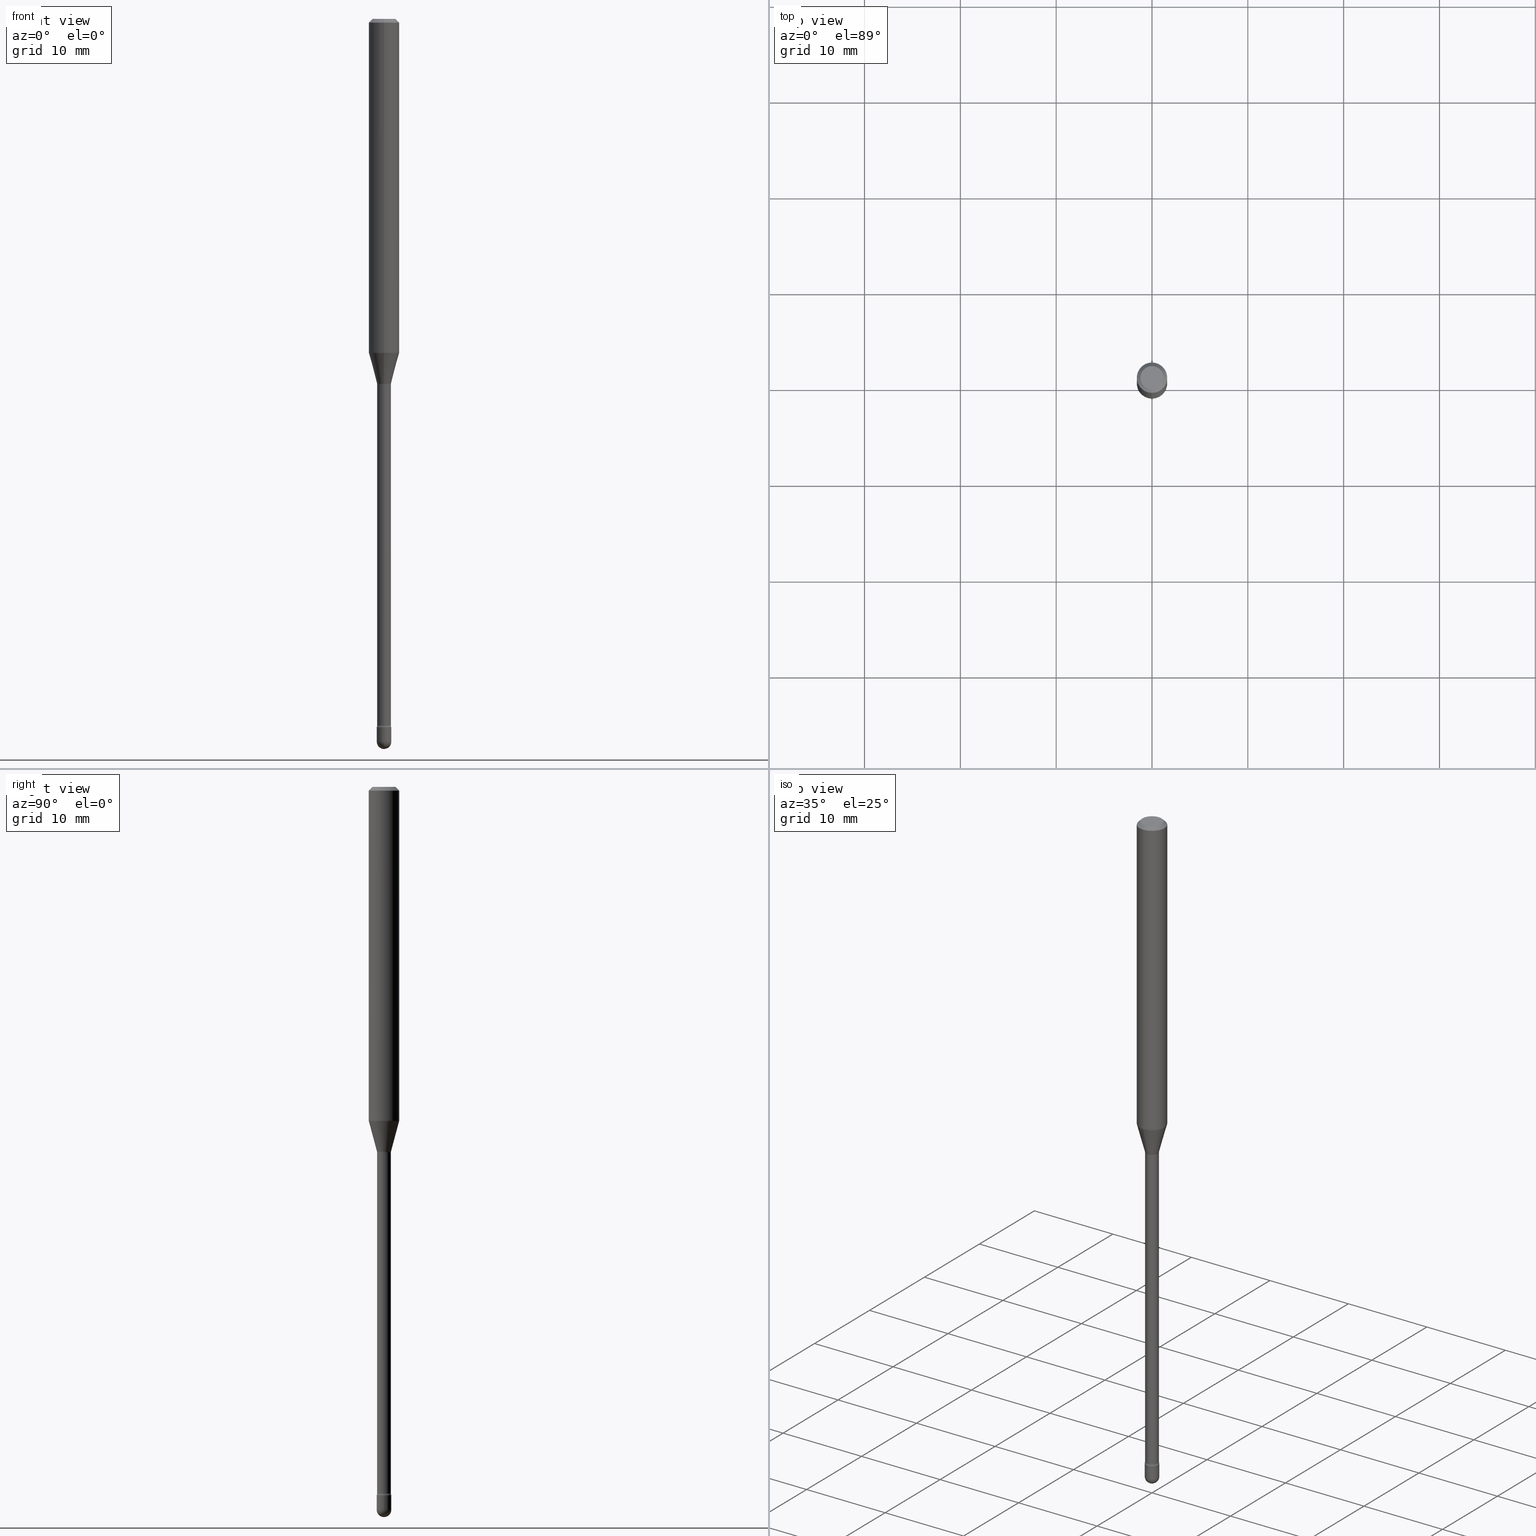
[diagram: canonical four-view strip — front | top / right | iso, engineering-drawing reading convention]
A machine part, canonical four-view strip (front | top / right | iso — engineering-drawing reading convention). The complete STEP part file that produces these views, byte-faithful:
ISO-10303-21;
HEADER;
FILE_DESCRIPTION (( 'STEP AP203' ),
    '1' );
FILE_NAME ('03979.STEP',
    '2024-04-09T21:37:00',
    ( '' ),
    ( '' ),
    'SwSTEP 2.0',
    'SolidWorks 2023',
    '' );
FILE_SCHEMA (( 'CONFIG_CONTROL_DESIGN' ));
ENDSEC;

DATA;
#1 = CARTESIAN_POINT ( 'NONE',  ( 7.263042354369856275E-29, -1.036969957636414298E-14, -2.970000000000000195 ) ) ;
#2 = CARTESIAN_POINT ( 'NONE',  ( 2.094888803306605716E-16, 0.02999999999998962177, -2.970000000000000195 ) ) ;
#3 = DATE_AND_TIME ( #134, #385 ) ;
#4 = CARTESIAN_POINT ( 'NONE',  ( 4.440892098500625669E-16, 0.06250000000000000000, 2.598563451626412411E-16 ) ) ;
#5 = DIRECTION ( 'NONE',  ( -6.982962677686266711E-15, -1.000000000000000000, 3.491472859657677154E-15 ) ) ;
#6 = ORIENTED_EDGE ( 'NONE', *, *, #511, .F. ) ;
#7 = ADVANCED_FACE ( 'NONE', ( #141 ), #537, .T. ) ;
#8 = AXIS2_PLACEMENT_3D ( 'NONE', #171, #127, #314 ) ;
#9 = CC_DESIGN_APPROVAL ( #117, ( #401 ) ) ;
#10 = DIRECTION ( 'NONE',  ( 1.000000000000000000, -6.982962677686266711E-15, 4.876176775795935793E-29 ) ) ;
#11 = PRODUCT ( '03979', '03979', '', ( #318 ) ) ;
#12 = LINE ( 'NONE', #102, #363 ) ;
#13 = CARTESIAN_POINT ( 'NONE',  ( -3.016639876759769479E-16, -0.04320000000001030654, -2.902875394747778337 ) ) ;
#14 = AXIS2_PLACEMENT_3D ( 'NONE', #327, #98, #286 ) ;
#15 = CONICAL_SURFACE ( 'NONE', #538, 0.06250000000000000000, 0.7853981633974483900 ) ;
#16 = VERTEX_POINT ( 'NONE', #146 ) ;
#17 = EDGE_CURVE ( 'NONE', #344, #94, #95, .T. ) ;
#18 = DIRECTION ( 'NONE',  ( -1.000000000000000000, 6.982962677686265922E-15, -4.883557194083112340E-29 ) ) ;
#19 = ORIENTED_EDGE ( 'NONE', *, *, #73, .T. ) ;
#20 = CC_DESIGN_DATE_AND_TIME_ASSIGNMENT ( #37, #446, ( #187 ) ) ;
#21 = CARTESIAN_POINT ( 'NONE',  ( 3.355168478339675367E-29, -4.790268143668202396E-15, -1.371990657300387939 ) ) ;
#22 = EDGE_LOOP ( 'NONE', ( #201, #456 ) ) ;
#23 = AXIS2_PLACEMENT_3D ( 'NONE', #501, #106, #161 ) ;
#24 = AXIS2_PLACEMENT_3D ( 'NONE', #168, #268, #142 ) ;
#25 = ORIENTED_EDGE ( 'NONE', *, *, #17, .F. ) ;
#26 = LINE ( 'NONE', #475, #496 ) ;
#27 = CARTESIAN_POINT ( 'NONE',  ( -2.131628207279573248E-16, -0.03000000000001035866, -2.970000000000000195 ) ) ;
#28 = CARTESIAN_POINT ( 'NONE',  ( 0.000000000000000000, 0.000000000000000000, 0.000000000000000000 ) ) ;
#29 = ADVANCED_FACE ( 'NONE', ( #396 ), #162, .F. ) ;
#30 = CC_DESIGN_PERSON_AND_ORGANIZATION_ASSIGNMENT ( #269, #398, ( #401 ) ) ;
#31 = COORDINATED_UNIVERSAL_TIME_OFFSET ( 5, 0, .BEHIND. ) ;
#32 = CARTESIAN_POINT ( 'NONE',  ( 4.364351673553919652E-16, 0.06249999999999995143, -0.01500000000000030129 ) ) ;
#33 = PERSON_AND_ORGANIZATION ( #287, #531 ) ;
#34 = AXIS2_PLACEMENT_3D ( 'NONE', #226, #274, #405 ) ;
#35 = COORDINATED_UNIVERSAL_TIME_OFFSET ( 5, 0, .BEHIND. ) ;
#36 = CC_DESIGN_PERSON_AND_ORGANIZATION_ASSIGNMENT ( #33, #129, ( #401 ) ) ;
#37 = DATE_AND_TIME ( #222, #330 ) ;
#38 = PERSON_AND_ORGANIZATION ( #287, #531 ) ;
#39 = DIRECTION ( 'NONE',  ( 1.000000000000000000, -7.105427357601001070E-15, 4.926315404702009189E-29 ) ) ;
#40 = DIRECTION ( 'NONE',  ( -6.982962677686265922E-15, -1.000000000000000000, 0.000000000000000000 ) ) ;
#41 = ORIENTED_EDGE ( 'NONE', *, *, #439, .F. ) ;
#42 = ORIENTED_EDGE ( 'NONE', *, *, #366, .T. ) ;
#43 = ORIENTED_EDGE ( 'NONE', *, *, #413, .F. ) ;
#44 = PRODUCT_DEFINITION_SHAPE ( 'NONE', 'NONE',  #187 ) ;
#45 = CARTESIAN_POINT ( 'NONE',  ( 0.000000000000000000, 0.000000000000000000, 0.000000000000000000 ) ) ;
#46 = ADVANCED_FACE ( 'NONE', ( #564 ), #231, .T. ) ;
#47 = CIRCLE ( 'NONE', #519, 0.02999999999999997807 ) ;
#48 = ORIENTED_EDGE ( 'NONE', *, *, #155, .F. ) ;
#49 = AXIS2_PLACEMENT_3D ( 'NONE', #462, #455, #237 ) ;
#50 = ORIENTED_EDGE ( 'NONE', *, *, #350, .F. ) ;
#51 = DIRECTION ( 'NONE',  ( 1.000000000000000000, -6.982962677686266711E-15, 0.000000000000000000 ) ) ;
#52 = ORIENTED_EDGE ( 'NONE', *, *, #257, .F. ) ;
#53 = UNCERTAINTY_MEASURE_WITH_UNIT (LENGTH_MEASURE( 1.000000000000000082E-05 ), #432, 'distance_accuracy_value', 'NONE');
#54 = SPHERICAL_SURFACE ( 'NONE', #173, 0.02999999999999997807 ) ;
#55 = DIRECTION ( 'NONE',  ( 6.982962677686265922E-15, 1.000000000000000000, 0.000000000000000000 ) ) ;
#56 = VERTEX_POINT ( 'NONE', #402 ) ;
#57 = DIRECTION ( 'NONE',  ( -2.445474727168702931E-29, 3.491472859657677154E-15, 1.000000000000000000 ) ) ;
#58 = AXIS2_PLACEMENT_3D ( 'NONE', #440, #530, #230 ) ;
#59 = ORIENTED_EDGE ( 'NONE', *, *, #431, .T. ) ;
#60 = FACE_OUTER_BOUND ( 'NONE', #335, .T. ) ;
#61 = ORIENTED_EDGE ( 'NONE', *, *, #294, .T. ) ;
#62 = APPROVAL_DATE_TIME ( #123, #329 ) ;
#63 = DIRECTION ( 'NONE',  ( 1.000000000000000000, -6.982962677686266711E-15, 0.000000000000000000 ) ) ;
#64 = ORIENTED_EDGE ( 'NONE', *, *, #166, .F. ) ;
#65 = MANIFOLD_SOLID_BREP ( 'Body-Move/Copy2[1]', #216 ) ;
#66 = ADVANCED_FACE ( 'NONE', ( #453 ), #74, .T. ) ;
#67 = DIRECTION ( 'NONE',  ( -6.982962677686265133E-15, -1.000000000000000000, 0.000000000000000000 ) ) ;
#68 = AXIS2_PLACEMENT_3D ( 'NONE', #322, #410, #148 ) ;
#69 = AXIS2_PLACEMENT_3D ( 'NONE', #524, #445, #40 ) ;
#70 = ORIENTED_EDGE ( 'NONE', *, *, #378, .F. ) ;
#71 = DIRECTION ( 'NONE',  ( -6.982962677686265922E-15, -1.000000000000000000, 4.370956789862821150E-15 ) ) ;
#72 = DIRECTION ( 'NONE',  ( -2.445474727168702931E-29, 3.491472859657677154E-15, 1.000000000000000000 ) ) ;
#73 = EDGE_CURVE ( 'NONE', #509, #332, #518, .T. ) ;
#74 = CONICAL_SURFACE ( 'NONE', #235, 0.02871111260566397427, 0.2617993877991500740 ) ;
#75 = AXIS2_PLACEMENT_3D ( 'NONE', #215, #470, #118 ) ;
#76 =( GEOMETRIC_REPRESENTATION_CONTEXT ( 3 ) GLOBAL_UNCERTAINTY_ASSIGNED_CONTEXT ( ( #53 ) ) GLOBAL_UNIT_ASSIGNED_CONTEXT ( ( #432, #207, #210 ) ) REPRESENTATION_CONTEXT ( 'NONE', 'WORKASPACE' ) );
#77 = CARTESIAN_POINT ( 'NONE',  ( 3.840629472727447874E-16, 0.04749999999999999362, -2.485923956665947867E-16 ) ) ;
#78 = EDGE_LOOP ( 'NONE', ( #454, #196, #471, #369 ) ) ;
#79 = FACE_OUTER_BOUND ( 'NONE', #151, .T. ) ;
#80 = APPROVAL_ROLE ( '' ) ;
#81 = DIRECTION ( 'NONE',  ( -2.445474727168702931E-29, 3.491472859657677154E-15, 1.000000000000000000 ) ) ;
#82 = APPROVAL ( #126, 'UNSPECIFIED' ) ;
#83 = DIRECTION ( 'NONE',  ( -2.445474727168702931E-29, 3.491472859657677154E-15, 1.000000000000000000 ) ) ;
#84 = CIRCLE ( 'NONE', #372, 0.02999999999999999889 ) ;
#85 = CIRCLE ( 'NONE', #340, 0.02999999999999999889 ) ;
#86 = PERSON_AND_ORGANIZATION_ROLE ( 'design_owner' ) ;
#87 = CARTESIAN_POINT ( 'NONE',  ( 3.673032490419300829E-29, -5.244116941842796689E-15, -1.501974787463811190 ) ) ;
#88 = CARTESIAN_POINT ( 'NONE',  ( 0.03000000000000000583, -1.047444401652943635E-14, -2.970000000000000195 ) ) ;
#89 = ORIENTED_EDGE ( 'NONE', *, *, #17, .T. ) ;
#90 = COORDINATED_UNIVERSAL_TIME_OFFSET ( 5, 0, .BEHIND. ) ;
#91 = DIRECTION ( 'NONE',  ( -2.445474727168702931E-29, 3.491472859657677154E-15, 1.000000000000000000 ) ) ;
#92 = ORIENTED_EDGE ( 'NONE', *, *, #240, .F. ) ;
#93 = DIRECTION ( 'NONE',  ( 6.982962677686265922E-15, 1.000000000000000000, 0.000000000000000000 ) ) ;
#94 = VERTEX_POINT ( 'NONE', #267 ) ;
#95 = CIRCLE ( 'NONE', #416, 0.01499999999999995087 ) ;
#96 = CARTESIAN_POINT ( 'NONE',  ( 7.263042354369856275E-29, -1.036969957636414298E-14, -2.970000000000000195 ) ) ;
#97 = AXIS2_PLACEMENT_3D ( 'NONE', #528, #562, #321 ) ;
#98 = DIRECTION ( 'NONE',  ( -2.445474727168702931E-29, 3.491472859657677154E-15, 1.000000000000000000 ) ) ;
#99 = CC_DESIGN_APPROVAL ( #82, ( #549 ) ) ;
#100 = ORIENTED_EDGE ( 'NONE', *, *, #334, .T. ) ;
#101 = ORIENTED_EDGE ( 'NONE', *, *, #427, .T. ) ;
#102 = CARTESIAN_POINT ( 'NONE',  ( 2.040047249754843961E-16, 0.02871111260565874582, -1.498092501787273267 ) ) ;
#103 = ORIENTED_EDGE ( 'NONE', *, *, #345, .F. ) ;
#104 = CARTESIAN_POINT ( 'NONE',  ( 7.263042354369856275E-29, -1.036969957636414298E-14, -2.970000000000000195 ) ) ;
#105 = AXIS2_PLACEMENT_3D ( 'NONE', #386, #154, #343 ) ;
#106 = DIRECTION ( 'NONE',  ( -2.445474727168702931E-29, 3.491472859657677154E-15, 1.000000000000000000 ) ) ;
#107 = LOCAL_TIME ( 17, 37, 0.000000000000000000, #512 ) ;
#108 = VERTEX_POINT ( 'NONE', #311 ) ;
#109 = DIRECTION ( 'NONE',  ( -2.445468806185136597E-29, 3.491481338843145583E-15, 1.000000000000000000 ) ) ;
#110 = DIRECTION ( 'NONE',  ( -6.982962677686265922E-15, -1.000000000000000000, 0.000000000000000000 ) ) ;
#111 = CARTESIAN_POINT ( 'NONE',  ( 7.098908413975562877E-29, -1.013531065572993230E-14, -2.902875394747778337 ) ) ;
#112 = EDGE_LOOP ( 'NONE', ( #387, #365, #59, #163 ) ) ;
#113 = ADVANCED_FACE ( 'NONE', ( #437 ), #441, .T. ) ;
#114 = CARTESIAN_POINT ( 'NONE',  ( 7.098908413975562877E-29, -1.013531065572993230E-14, -2.902875394747778337 ) ) ;
#115 = CARTESIAN_POINT ( 'NONE',  ( -1.969195475107158970E-16, -0.02820000000000523824, -1.501974787463811190 ) ) ;
#116 = ORIENTED_EDGE ( 'NONE', *, *, #209, .T. ) ;
#117 = APPROVAL ( #484, 'UNSPECIFIED' ) ;
#118 = DIRECTION ( 'NONE',  ( 6.982962677686265922E-15, 1.000000000000000000, -3.491472859657677154E-15 ) ) ;
#119 = CIRCLE ( 'NONE', #348, 0.03000000000000000583 ) ;
#120 = LOCAL_TIME ( 17, 37, 0.000000000000000000, #442 ) ;
#121 = EDGE_CURVE ( 'NONE', #232, #503, #47, .T. ) ;
#122 = DIRECTION ( 'NONE',  ( -6.982962677686265133E-15, -1.000000000000000000, 0.000000000000000000 ) ) ;
#123 = DATE_AND_TIME ( #214, #107 ) ;
#124 = DIRECTION ( 'NONE',  ( -2.445474727168702931E-29, 3.491472859657677154E-15, 1.000000000000000000 ) ) ;
#125 = CARTESIAN_POINT ( 'NONE',  ( 7.116331456060926733E-29, -1.016018602160384322E-14, -2.910000000000000586 ) ) ;
#126 = APPROVAL_STATUS ( 'not_yet_approved' ) ;
#127 = DIRECTION ( 'NONE',  ( -2.438088387897960049E-29, 3.491481338843145188E-15, 1.000000000000000000 ) ) ;
#128 = EDGE_CURVE ( 'NONE', #336, #156, #383, .T. ) ;
#129 = PERSON_AND_ORGANIZATION_ROLE ( 'design_supplier' ) ;
#130 = DIRECTION ( 'NONE',  ( -1.807323732225328562E-15, -0.2588190451025179639, 0.9659258262890690894 ) ) ;
#131 = APPLICATION_PROTOCOL_DEFINITION ( 'international standard', 'config_control_design', 1994, #276 ) ;
#132 = EDGE_LOOP ( 'NONE', ( #302, #539, #48, #70, #116 ) ) ;
#133 = VECTOR ( 'NONE', #516, 39.37007874015748143 ) ;
#134 = CALENDAR_DATE ( 2024, 9, 4 ) ;
#135 = AXIS2_PLACEMENT_3D ( 'NONE', #338, #109, #553 ) ;
#136 = ORIENTED_EDGE ( 'NONE', *, *, #228, .F. ) ;
#137 = CALENDAR_DATE ( 2024, 9, 4 ) ;
#138 = CC_DESIGN_PERSON_AND_ORGANIZATION_ASSIGNMENT ( #527, #271, ( #549 ) ) ;
#139 = ORIENTED_EDGE ( 'NONE', *, *, #128, .F. ) ;
#140 = SPHERICAL_SURFACE ( 'NONE', #547, 0.02999999999999997807 ) ;
#141 = FACE_OUTER_BOUND ( 'NONE', #543, .T. ) ;
#142 = DIRECTION ( 'NONE',  ( -6.982962677686265133E-15, -1.000000000000000000, 3.491472859657677154E-15 ) ) ;
#143 = ADVANCED_FACE ( 'NONE', ( #375 ), #279, .F. ) ;
#144 = DIRECTION ( 'NONE',  ( -2.445474727168702931E-29, 3.491472859657677154E-15, 1.000000000000000000 ) ) ;
#145 = AXIS2_PLACEMENT_3D ( 'NONE', #167, #424, #122 ) ;
#146 = CARTESIAN_POINT ( 'NONE',  ( -1.969195475106832086E-16, -0.02820000000001035220, -2.902875394747778337 ) ) ;
#147 = LOCAL_TIME ( 17, 37, 0.000000000000000000, #31 ) ;
#148 = DIRECTION ( 'NONE',  ( -6.982962677686265922E-15, -1.000000000000000000, 3.483106191921935554E-15 ) ) ;
#149 = DIRECTION ( 'NONE',  ( -6.982962677686266711E-15, -1.000000000000000000, 0.000000000000000000 ) ) ;
#150 = CARTESIAN_POINT ( 'NONE',  ( 7.116314225998749245E-29, -1.016021069603355467E-14, -2.910000000000000586 ) ) ;
#151 = EDGE_LOOP ( 'NONE', ( #468, #139, #42, #486 ) ) ;
#152 = DIRECTION ( 'NONE',  ( -2.445474727168702650E-29, 3.491472859657677154E-15, 1.000000000000000000 ) ) ;
#153 = CIRCLE ( 'NONE', #557, 0.02820000000000021795 ) ;
#154 = DIRECTION ( 'NONE',  ( -2.445468806185136597E-29, 3.491481338843145583E-15, 1.000000000000000000 ) ) ;
#155 = EDGE_CURVE ( 'NONE', #241, #188, #84, .T. ) ;
#156 = VERTEX_POINT ( 'NONE', #208 ) ;
#157 = DIRECTION ( 'NONE',  ( 7.105427357601001859E-15, 1.000000000000000000, 0.000000000000000000 ) ) ;
#158 = ORIENTED_EDGE ( 'NONE', *, *, #489, .F. ) ;
#159 = DIRECTION ( 'NONE',  ( -2.445468806185136597E-29, 3.491481338843145583E-15, 1.000000000000000000 ) ) ;
#160 = EDGE_CURVE ( 'NONE', #332, #451, #319, .T. ) ;
#161 = DIRECTION ( 'NONE',  ( -6.982962677686266711E-15, -1.000000000000000000, 3.491472859657677154E-15 ) ) ;
#162 = TOROIDAL_SURFACE ( 'NONE', #245, 0.04320000000000000229, 0.01500000000000003067 ) ;
#163 = ORIENTED_EDGE ( 'NONE', *, *, #366, .F. ) ;
#164 = CIRCLE ( 'NONE', #472, 0.01500000000000002720 ) ;
#165 = CONICAL_SURFACE ( 'NONE', #444, 0.02871111260566397427, 0.2617993877991500740 ) ;
#166 = EDGE_CURVE ( 'NONE', #344, #16, #153, .T. ) ;
#167 = CARTESIAN_POINT ( 'NONE',  ( 3.673041383587334427E-29, -5.244104206320004294E-15, -1.501974787463811190 ) ) ;
#168 = CARTESIAN_POINT ( 'NONE',  ( 7.098891226098056422E-29, -1.013533526974879710E-14, -2.902875394747778337 ) ) ;
#169 = CARTESIAN_POINT ( 'NONE',  ( -1.169113584055446105E-44, 1.669184350826100908E-30, 4.780733988912460139E-16 ) ) ;
#170 = PERSON_AND_ORGANIZATION_ROLE ( 'creator' ) ;
#171 = CARTESIAN_POINT ( 'NONE',  ( 7.116314225998749245E-29, -1.016021069603355467E-14, -2.910000000000000586 ) ) ;
#172 = ADVANCED_FACE ( 'NONE', ( #349 ), #200, .F. ) ;
#173 = AXIS2_PLACEMENT_3D ( 'NONE', #333, #18, #499 ) ;
#174 = APPROVAL_ROLE ( '' ) ;
#175 = CARTESIAN_POINT ( 'NONE',  ( -2.004886277601625848E-16, -0.02871111260566920273, -1.498092501787273267 ) ) ;
#176 = DESIGN_CONTEXT ( 'detailed design', #395, 'design' ) ;
#177 = DIRECTION ( 'NONE',  ( -2.445474727168702931E-29, 3.491472859657677154E-15, 1.000000000000000000 ) ) ;
#178 = ADVANCED_BREP_SHAPE_REPRESENTATION ( '03979', ( #65, #447, #58 ), #76 ) ;
#179 = ORIENTED_EDGE ( 'NONE', *, *, #192, .F. ) ;
#180 = PERSON_AND_ORGANIZATION ( #287, #531 ) ;
#181 = EDGE_CURVE ( 'NONE', #414, #188, #390, .T. ) ;
#182 = LINE ( 'NONE', #4, #185 ) ;
#183 = DIRECTION ( 'NONE',  ( 7.105427357601001859E-15, 1.000000000000000000, 0.000000000000000000 ) ) ;
#184 = ORIENTED_EDGE ( 'NONE', *, *, #378, .T. ) ;
#185 = VECTOR ( 'NONE', #266, 39.37007874015748143 ) ;
#186 = AXIS2_PLACEMENT_3D ( 'NONE', #290, #91, #514 ) ;
#187 = PRODUCT_DEFINITION ( 'UNKNOWN', '', #401, #176 ) ;
#188 = VERTEX_POINT ( 'NONE', #505 ) ;
#189 = ORIENTED_EDGE ( 'NONE', *, *, #563, .F. ) ;
#190 = CARTESIAN_POINT ( 'NONE',  ( -1.169113584055446105E-44, 1.669184350826100908E-30, 4.780733988912460139E-16 ) ) ;
#191 = ORIENTED_EDGE ( 'NONE', *, *, #345, .T. ) ;
#192 = EDGE_CURVE ( 'NONE', #332, #234, #393, .T. ) ;
#193 = VERTEX_POINT ( 'NONE', #388 ) ;
#194 = DIRECTION ( 'NONE',  ( -2.445468806185136877E-29, 3.491481338843145188E-15, 1.000000000000000000 ) ) ;
#195 = DIRECTION ( 'NONE',  ( -6.982962677686266711E-15, -1.000000000000000000, 3.491472859657677548E-15 ) ) ;
#196 = ORIENTED_EDGE ( 'NONE', *, *, #240, .T. ) ;
#197 = CARTESIAN_POINT ( 'NONE',  ( 0.03000000000000000583, -2.094888803305880457E-16, 1.462853032738781053E-30 ) ) ;
#198 = ORIENTED_EDGE ( 'NONE', *, *, #481, .F. ) ;
#199 = DIRECTION ( 'NONE',  ( -2.445474727168702931E-29, 3.491472859657677154E-15, 1.000000000000000000 ) ) ;
#200 = PLANE ( 'NONE',  #75 ) ;
#201 = ORIENTED_EDGE ( 'NONE', *, *, #128, .T. ) ;
#202 = EDGE_CURVE ( 'NONE', #232, #288, #458, .T. ) ;
#203 = AXIS2_PLACEMENT_3D ( 'NONE', #96, #459, #51 ) ;
#204 = CARTESIAN_POINT ( 'NONE',  ( 3.069544618483999786E-16, 0.04319999999999475648, -1.501974787463811412 ) ) ;
#205 = CC_DESIGN_APPROVAL ( #329, ( #187 ) ) ;
#206 = EDGE_LOOP ( 'NONE', ( #252, #61, #136, #52 ) ) ;
#207 =( NAMED_UNIT ( * ) PLANE_ANGLE_UNIT ( ) SI_UNIT ( $, .RADIAN. ) );
#208 = CARTESIAN_POINT ( 'NONE',  ( -3.773273898774340269E-16, -0.04749999999999999362, 8.309752600088451631E-17 ) ) ;
#209 = EDGE_CURVE ( 'NONE', #490, #503, #443, .T. ) ;
#210 =( NAMED_UNIT ( * ) SI_UNIT ( $, .STERADIAN. ) SOLID_ANGLE_UNIT ( ) );
#211 = CARTESIAN_POINT ( 'NONE',  ( 2.003730514843489875E-16, 0.02820000000000010693, 3.796138642488992175E-16 ) ) ;
#212 = CARTESIAN_POINT ( 'NONE',  ( 3.069544618484353787E-16, 0.04319999999999003804, -2.902875394747778337 ) ) ;
#213 = CC_DESIGN_PERSON_AND_ORGANIZATION_ASSIGNMENT ( #404, #170, ( #187 ) ) ;
#214 = CALENDAR_DATE ( 2024, 9, 4 ) ;
#215 = CARTESIAN_POINT ( 'NONE',  ( 3.316907271900976096E-16, 0.04749999999999999362, 3.181802119545582484E-17 ) ) ;
#216 = CLOSED_SHELL ( 'NONE', ( #233, #407, #113, #450, #391 ) ) ;
#217 = AXIS2_PLACEMENT_3D ( 'NONE', #45, #367, #10 ) ;
#218 = TOROIDAL_SURFACE ( 'NONE', #186, 0.04320000000000016882, 0.01499999999999995087 ) ;
#219 = DATE_TIME_ROLE ( 'classification_date' ) ;
#220 = EDGE_CURVE ( 'NONE', #156, #234, #341, .T. ) ;
#221 = DIRECTION ( 'NONE',  ( 4.937700262164548042E-15, 0.7071067811865451302, -0.7071067811865499042 ) ) ;
#222 = CALENDAR_DATE ( 2024, 9, 4 ) ;
#223 = DIRECTION ( 'NONE',  ( -6.982962677686266711E-15, -1.000000000000000000, 3.491472859657679126E-15 ) ) ;
#224 = AXIS2_PLACEMENT_3D ( 'NONE', #546, #177, #223 ) ;
#225 = DATE_AND_TIME ( #452, #120 ) ;
#226 = CARTESIAN_POINT ( 'NONE',  ( 3.355168478339675367E-29, -4.790268143668202396E-15, -1.371990657300387939 ) ) ;
#227 = DIRECTION ( 'NONE',  ( 1.000000000000000000, -6.982962677686265922E-15, 4.883557194083112340E-29 ) ) ;
#228 = EDGE_CURVE ( 'NONE', #295, #108, #417, .T. ) ;
#229 = DIRECTION ( 'NONE',  ( 2.445474727168702931E-29, -3.491472859657677154E-15, -1.000000000000000000 ) ) ;
#230 = DIRECTION ( 'NONE',  ( 1.000000000000000000, 0.000000000000000000, 0.000000000000000000 ) ) ;
#231 = CYLINDRICAL_SURFACE ( 'NONE', #565, 0.02820000000000010693 ) ;
#232 = VERTEX_POINT ( 'NONE', #351 ) ;
#233 = ADVANCED_FACE ( 'NONE', ( #381 ), #513, .T. ) ;
#234 = VERTEX_POINT ( 'NONE', #474 ) ;
#235 = AXIS2_PLACEMENT_3D ( 'NONE', #354, #83, #272 ) ;
#236 = CONICAL_SURFACE ( 'NONE', #97, 0.06250000000000000000, 0.7853981633974483900 ) ;
#237 = DIRECTION ( 'NONE',  ( -6.982962677686266711E-15, -1.000000000000000000, 3.491472859657677548E-15 ) ) ;
#238 = FACE_OUTER_BOUND ( 'NONE', #532, .T. ) ;
#239 = ORIENTED_EDGE ( 'NONE', *, *, #202, .F. ) ;
#240 = EDGE_CURVE ( 'NONE', #193, #108, #529, .T. ) ;
#241 = VERTEX_POINT ( 'NONE', #253 ) ;
#242 = LINE ( 'NONE', #197, #408 ) ;
#243 = DIMENSIONAL_EXPONENTS ( 1.000000000000000000, 0.000000000000000000, 0.000000000000000000, 0.000000000000000000, 0.000000000000000000, 0.000000000000000000, 0.000000000000000000 ) ;
#244 = APPROVAL_DATE_TIME ( #225, #82 ) ;
#245 = AXIS2_PLACEMENT_3D ( 'NONE', #87, #482, #5 ) ;
#246 = AXIS2_PLACEMENT_3D ( 'NONE', #21, #556, #71 ) ;
#247 = CIRCLE ( 'NONE', #357, 0.02820000000000021795 ) ;
#248 = EDGE_LOOP ( 'NONE', ( #92, #6, #326, #495 ) ) ;
#249 = EDGE_CURVE ( 'NONE', #188, #241, #463, .T. ) ;
#250 = CARTESIAN_POINT ( 'NONE',  ( -3.016639876760099322E-16, -0.04320000000000524115, -1.501974787463810967 ) ) ;
#251 = DIRECTION ( 'NONE',  ( 1.000000000000000000, -6.982962677686266711E-15, 4.876176775795935793E-29 ) ) ;
#252 = ORIENTED_EDGE ( 'NONE', *, *, #563, .T. ) ;
#253 = CARTESIAN_POINT ( 'NONE',  ( 0.02999999999999999889, -1.036969957636414298E-14, -2.910000000000000586 ) ) ;
#254 = ORIENTED_EDGE ( 'NONE', *, *, #202, .T. ) ;
#255 = LENGTH_MEASURE_WITH_UNIT ( LENGTH_MEASURE( 0.02539999999999999897 ), #469 );
#256 = AXIS2_PLACEMENT_3D ( 'NONE', #190, #199, #380 ) ;
#257 = EDGE_CURVE ( 'NONE', #16, #295, #26, .T. ) ;
#258 = DIRECTION ( 'NONE',  ( -1.000000000000000000, 7.105427357601001070E-15, -4.926315508542082329E-29 ) ) ;
#259 = ORIENTED_EDGE ( 'NONE', *, *, #73, .F. ) ;
#260 = DIRECTION ( 'NONE',  ( -6.982962677686265922E-15, -1.000000000000000000, 3.491472859657677154E-15 ) ) ;
#261 = DIRECTION ( 'NONE',  ( -2.445474727168702931E-29, 3.491472859657677154E-15, 1.000000000000000000 ) ) ;
#262 = CARTESIAN_POINT ( 'NONE',  ( -4.364351673553916201E-16, -0.06250000000000000000, 6.962904526198508854E-16 ) ) ;
#263 = DIRECTION ( 'NONE',  ( -2.445468806185136597E-29, 3.491481338843145583E-15, 1.000000000000000000 ) ) ;
#264 = AXIS2_PLACEMENT_3D ( 'NONE', #125, #308, #317 ) ;
#265 = APPROVAL_DATE_TIME ( #478, #117 ) ;
#266 = DIRECTION ( 'NONE',  ( -2.445474727168702931E-29, 3.491472859657677154E-15, 1.000000000000000000 ) ) ;
#267 = CARTESIAN_POINT ( 'NONE',  ( 2.131628207281009467E-16, 0.02999999999998981259, -2.910000000000000586 ) ) ;
#268 = DIRECTION ( 'NONE',  ( -2.445474727168702931E-29, 3.491472859657677154E-15, 1.000000000000000000 ) ) ;
#269 = PERSON_AND_ORGANIZATION ( #287, #531 ) ;
#270 = CARTESIAN_POINT ( 'NONE',  ( -2.004886277601625848E-16, -0.02871111260566920273, -1.498092501787273267 ) ) ;
#271 = PERSON_AND_ORGANIZATION_ROLE ( 'classification_officer' ) ;
#272 = DIRECTION ( 'NONE',  ( -6.982962677686265922E-15, -1.000000000000000000, 0.000000000000000000 ) ) ;
#273 = AXIS2_PLACEMENT_3D ( 'NONE', #204, #306, #157 ) ;
#274 = DIRECTION ( 'NONE',  ( -2.445474727168702931E-29, 3.491472859657677154E-15, 1.000000000000000000 ) ) ;
#275 = APPLICATION_PROTOCOL_DEFINITION ( 'international standard', 'config_control_design', 1994, #395 ) ;
#276 = APPLICATION_CONTEXT ( 'configuration controlled 3d designs of mechanical parts and assemblies' ) ;
#277 = CARTESIAN_POINT ( 'NONE',  ( 4.440892098500958469E-16, 0.06249999999999517747, -1.371990657300388161 ) ) ;
#278 = EDGE_LOOP ( 'NONE', ( #50, #191, #281, #43 ) ) ;
#279 = TOROIDAL_SURFACE ( 'NONE', #23, 0.04320000000000000229, 0.01500000000000003067 ) ;
#280 = CIRCLE ( 'NONE', #522, 0.02819999999999999243 ) ;
#281 = ORIENTED_EDGE ( 'NONE', *, *, #192, .T. ) ;
#282 = AXIS2_PLACEMENT_3D ( 'NONE', #331, #152, #260 ) ;
#283 = DIRECTION ( 'NONE',  ( -1.000000000000000000, 6.982962677686265922E-15, -4.883557194083112340E-29 ) ) ;
#284 = CC_DESIGN_SECURITY_CLASSIFICATION ( #549, ( #401 ) ) ;
#285 = EDGE_CURVE ( 'NONE', #108, #295, #280, .T. ) ;
#286 = DIRECTION ( 'NONE',  ( -6.982962677686265922E-15, -1.000000000000000000, 3.491472859657677548E-15 ) ) ;
#287 = PERSON ( 'UNSPECIFIED', 'UNSPECIFIED', 'UNSPECIFIED', ('UNSPECIFIED'), ('UNSPECIFIED'), ('UNSPECIFIED') ) ;
#288 = VERTEX_POINT ( 'NONE', #27 ) ;
#289 = FACE_OUTER_BOUND ( 'NONE', #278, .T. ) ;
#290 = CARTESIAN_POINT ( 'NONE',  ( 7.098891226098056422E-29, -1.013533526974879710E-14, -2.902875394747778337 ) ) ;
#291 = ORIENTED_EDGE ( 'NONE', *, *, #294, .F. ) ;
#292 = DIRECTION ( 'NONE',  ( 1.839019923739598738E-15, 0.2588190451025247363, 0.9659258262890673130 ) ) ;
#293 = SHAPE_DEFINITION_REPRESENTATION ( #44, #178 ) ;
#294 = EDGE_CURVE ( 'NONE', #344, #108, #508, .T. ) ;
#295 = VERTEX_POINT ( 'NONE', #115 ) ;
#296 = AXIS2_PLACEMENT_3D ( 'NONE', #534, #144, #411 ) ;
#297 = ORIENTED_EDGE ( 'NONE', *, *, #497, .T. ) ;
#298 = CARTESIAN_POINT ( 'NONE',  ( 7.263042354369856275E-29, -1.036969957636414298E-14, -2.970000000000000195 ) ) ;
#299 = EDGE_LOOP ( 'NONE', ( #291, #493, #552, #342 ) ) ;
#300 = DIRECTION ( 'NONE',  ( -6.982962677686265133E-15, -1.000000000000000000, 0.000000000000000000 ) ) ;
#301 = DIRECTION ( 'NONE',  ( -2.445468806185136597E-29, 3.491481338843145583E-15, 1.000000000000000000 ) ) ;
#302 = ORIENTED_EDGE ( 'NONE', *, *, #489, .T. ) ;
#303 = DIRECTION ( 'NONE',  ( -2.445474727168702931E-29, 3.491472859657677154E-15, 1.000000000000000000 ) ) ;
#304 = VECTOR ( 'NONE', #550, 39.37007874015748143 ) ;
#305 = CARTESIAN_POINT ( 'NONE',  ( -0.03000000000000000583, 2.131628207280300972E-16, -1.475680527076471882E-30 ) ) ;
#306 = DIRECTION ( 'NONE',  ( 1.000000000000000000, -7.105427357601001070E-15, 4.926315404702009189E-29 ) ) ;
#307 = FACE_OUTER_BOUND ( 'NONE', #299, .T. ) ;
#308 = DIRECTION ( 'NONE',  ( -2.445474727168702931E-29, 3.491472859657677154E-15, 1.000000000000000000 ) ) ;
#309 = VECTOR ( 'NONE', #130, 39.37007874015748854 ) ;
#310 = CIRCLE ( 'NONE', #49, 0.04749999999999999362 ) ;
#311 = CARTESIAN_POINT ( 'NONE',  ( 2.003730514844198124E-16, 0.02819999999999474663, -1.501974787463811190 ) ) ;
#312 = ADVANCED_FACE ( 'NONE', ( #307 ), #476, .T. ) ;
#313 = CARTESIAN_POINT ( 'NONE',  ( 3.668212090753074452E-31, -5.237209289486544796E-17, -0.01500000000000008271 ) ) ;
#314 = DIRECTION ( 'NONE',  ( 1.000000000000000000, -6.982962677686265922E-15, 4.876176775795935793E-29 ) ) ;
#315 = ADVANCED_FACE ( 'NONE', ( #79 ), #15, .T. ) ;
#316 = ORIENTED_EDGE ( 'NONE', *, *, #542, .T. ) ;
#317 = DIRECTION ( 'NONE',  ( -6.982962677686265922E-15, -1.000000000000000000, 0.000000000000000000 ) ) ;
#318 = MECHANICAL_CONTEXT ( 'NONE', #276, 'mechanical' ) ;
#319 = CIRCLE ( 'NONE', #246, 0.06250000000000000000 ) ;
#320 = APPROVAL_PERSON_ORGANIZATION ( #521, #82, #80 ) ;
#321 = DIRECTION ( 'NONE',  ( 6.982962677686265922E-15, 1.000000000000000000, -3.483106191921935554E-15 ) ) ;
#322 = CARTESIAN_POINT ( 'NONE',  ( 3.668212090753074452E-31, -5.237209289486544796E-17, -0.01500000000000008271 ) ) ;
#323 = ORIENTED_EDGE ( 'NONE', *, *, #249, .F. ) ;
#324 = CARTESIAN_POINT ( 'NONE',  ( 2.023595912865247863E-45, -2.889063692521893873E-31, -8.274743483285514752E-17 ) ) ;
#325 = EDGE_CURVE ( 'NONE', #94, #56, #355, .T. ) ;
#326 = ORIENTED_EDGE ( 'NONE', *, *, #394, .T. ) ;
#327 = CARTESIAN_POINT ( 'NONE',  ( -1.169113584055446105E-44, 1.669184350826100908E-30, 4.780733988912460139E-16 ) ) ;
#328 = AXIS2_PLACEMENT_3D ( 'NONE', #13, #283, #149 ) ;
#329 = APPROVAL ( #361, 'UNSPECIFIED' ) ;
#330 = LOCAL_TIME ( 17, 37, 0.000000000000000000, #90 ) ;
#331 = CARTESIAN_POINT ( 'NONE',  ( 2.094888803306591418E-16, 0.02999999999998984035, -2.910000000000000586 ) ) ;
#332 = VERTEX_POINT ( 'NONE', #485 ) ;
#333 = CARTESIAN_POINT ( 'NONE',  ( 7.263042354369856275E-29, -1.036969957636414298E-14, -2.970000000000000195 ) ) ;
#334 = EDGE_CURVE ( 'NONE', #288, #490, #119, .T. ) ;
#335 = EDGE_LOOP ( 'NONE', ( #412, #373, #100, #184, #323 ) ) ;
#336 = VERTEX_POINT ( 'NONE', #77 ) ;
#337 = CLOSED_SHELL ( 'NONE', ( #29, #46, #535, #358, #7, #66, #551, #403, #315, #172, #483, #525, #312, #143 ) ) ;
#338 = CARTESIAN_POINT ( 'NONE',  ( 7.263042354369856275E-29, -1.036969957636414298E-14, -2.970000000000000195 ) ) ;
#339 = AXIS2_PLACEMENT_3D ( 'NONE', #467, #263, #63 ) ;
#340 = AXIS2_PLACEMENT_3D ( 'NONE', #560, #477, #397 ) ;
#341 = LINE ( 'NONE', #433, #304 ) ;
#342 = ORIENTED_EDGE ( 'NONE', *, *, #285, .F. ) ;
#343 = DIRECTION ( 'NONE',  ( 1.000000000000000000, -6.982962677686268288E-15, 0.000000000000000000 ) ) ;
#344 = VERTEX_POINT ( 'NONE', #399 ) ;
#345 = EDGE_CURVE ( 'NONE', #451, #332, #479, .T. ) ;
#346 = DIRECTION ( 'NONE',  ( -2.445474727168702931E-29, 3.491472859657677154E-15, 1.000000000000000000 ) ) ;
#347 = APPROVAL_ROLE ( '' ) ;
#348 = AXIS2_PLACEMENT_3D ( 'NONE', #480, #406, #360 ) ;
#349 = FACE_OUTER_BOUND ( 'NONE', #22, .T. ) ;
#350 = EDGE_CURVE ( 'NONE', #451, #423, #182, .T. ) ;
#351 = CARTESIAN_POINT ( 'NONE',  ( 7.337689167989179153E-29, -1.047260704633071697E-14, -3.000000000000000444 ) ) ;
#352 = FACE_OUTER_BOUND ( 'NONE', #526, .T. ) ;
#353 = PRODUCT_RELATED_PRODUCT_CATEGORY ( 'detail', '', ( #11 ) ) ;
#354 = CARTESIAN_POINT ( 'NONE',  ( 3.663547352081711790E-29, -5.230549311246934180E-15, -1.498092501787273267 ) ) ;
#355 = CIRCLE ( 'NONE', #264, 0.02999999999999999889 ) ;
#356 = CIRCLE ( 'NONE', #465, 0.02871111260566397427 ) ;
#357 = AXIS2_PLACEMENT_3D ( 'NONE', #114, #261, #300 ) ;
#358 = ADVANCED_FACE ( 'NONE', ( #448 ), #236, .T. ) ;
#359 = CARTESIAN_POINT ( 'NONE',  ( 3.663547352081711790E-29, -5.230549311246934180E-15, -1.498092501787273267 ) ) ;
#360 = DIRECTION ( 'NONE',  ( 1.000000000000000000, -6.982962677686266711E-15, 0.000000000000000000 ) ) ;
#361 = APPROVAL_STATUS ( 'not_yet_approved' ) ;
#362 = DIRECTION ( 'NONE',  ( -6.982962677686266711E-15, -1.000000000000000000, 3.491472859657679126E-15 ) ) ;
#363 = VECTOR ( 'NONE', #292, 39.37007874015748854 ) ;
#364 = EDGE_LOOP ( 'NONE', ( #41, #316, #19, #103 ) ) ;
#365 = ORIENTED_EDGE ( 'NONE', *, *, #220, .T. ) ;
#366 = EDGE_CURVE ( 'NONE', #336, #423, #436, .T. ) ;
#367 = DIRECTION ( 'NONE',  ( -2.445468806185136597E-29, 3.491481338843145583E-15, 1.000000000000000000 ) ) ;
#368 = ORIENTED_EDGE ( 'NONE', *, *, #439, .T. ) ;
#369 = ORIENTED_EDGE ( 'NONE', *, *, #394, .F. ) ;
#370 = FACE_OUTER_BOUND ( 'NONE', #466, .T. ) ;
#371 = EDGE_LOOP ( 'NONE', ( #429, #254, #198, #158 ) ) ;
#372 = AXIS2_PLACEMENT_3D ( 'NONE', #150, #301, #422 ) ;
#373 = ORIENTED_EDGE ( 'NONE', *, *, #481, .T. ) ;
#374 = CYLINDRICAL_SURFACE ( 'NONE', #217, 0.03000000000000000583 ) ;
#375 = FACE_OUTER_BOUND ( 'NONE', #248, .T. ) ;
#376 = ORIENTED_EDGE ( 'NONE', *, *, #160, .T. ) ;
#377 = CYLINDRICAL_SURFACE ( 'NONE', #256, 0.06250000000000000000 ) ;
#378 = EDGE_CURVE ( 'NONE', #490, #241, #242, .T. ) ;
#379 = ORIENTED_EDGE ( 'NONE', *, *, #497, .F. ) ;
#380 = DIRECTION ( 'NONE',  ( -6.982962677686265922E-15, -1.000000000000000000, 3.491472859657677548E-15 ) ) ;
#381 = FACE_OUTER_BOUND ( 'NONE', #132, .T. ) ;
#382 = ORIENTED_EDGE ( 'NONE', *, *, #249, .T. ) ;
#383 = CIRCLE ( 'NONE', #457, 0.04749999999999999362 ) ;
#384 = CIRCLE ( 'NONE', #203, 0.03000000000000000583 ) ;
#385 = LOCAL_TIME ( 17, 37, 0.000000000000000000, #35 ) ;
#386 = CARTESIAN_POINT ( 'NONE',  ( 7.116314225998749245E-29, -1.016021069603355467E-14, -2.910000000000000586 ) ) ;
#387 = ORIENTED_EDGE ( 'NONE', *, *, #473, .F. ) ;
#388 = CARTESIAN_POINT ( 'NONE',  ( 3.240469674127903064E-16, 0.02871111260565874582, -1.498092501787273267 ) ) ;
#389 = CC_DESIGN_PERSON_AND_ORGANIZATION_ASSIGNMENT ( #38, #86, ( #11 ) ) ;
#390 = LINE ( 'NONE', #305, #133 ) ;
#391 = ADVANCED_FACE ( 'NONE', ( #60 ), #374, .T. ) ;
#392 = VECTOR ( 'NONE', #559, 39.37007874015748143 ) ;
#393 = LINE ( 'NONE', #262, #520 ) ;
#394 = EDGE_CURVE ( 'NONE', #509, #295, #164, .T. ) ;
#395 = APPLICATION_CONTEXT ( 'configuration controlled 3d designs of mechanical parts and assemblies' ) ;
#396 = FACE_OUTER_BOUND ( 'NONE', #78, .T. ) ;
#397 = DIRECTION ( 'NONE',  ( -6.982962677686265922E-15, -1.000000000000000000, 0.000000000000000000 ) ) ;
#398 = PERSON_AND_ORGANIZATION_ROLE ( 'creator' ) ;
#399 = CARTESIAN_POINT ( 'NONE',  ( 2.067679361062608233E-16, 0.02819999999999008716, -2.902875394747778337 ) ) ;
#400 = CIRCLE ( 'NONE', #135, 0.03000000000000000583 ) ;
#401 = PRODUCT_DEFINITION_FORMATION_WITH_SPECIFIED_SOURCE ( 'ANY', '', #11, .NOT_KNOWN. ) ;
#402 = CARTESIAN_POINT ( 'NONE',  ( -2.094888803305166784E-16, -0.03000000000001012967, -2.910000000000000586 ) ) ;
#403 = ADVANCED_FACE ( 'NONE', ( #289 ), #377, .T. ) ;
#404 = PERSON_AND_ORGANIZATION ( #287, #531 ) ;
#405 = DIRECTION ( 'NONE',  ( -6.982962677686265922E-15, -1.000000000000000000, 4.370956789862821150E-15 ) ) ;
#406 = DIRECTION ( 'NONE',  ( -2.445468806185136597E-29, 3.491481338843145583E-15, 1.000000000000000000 ) ) ;
#407 = ADVANCED_FACE ( 'NONE', ( #540 ), #54, .T. ) ;
#408 = VECTOR ( 'NONE', #194, 39.37007874015748143 ) ;
#409 = APPROVAL_PERSON_ORGANIZATION ( #449, #329, #347 ) ;
#410 = DIRECTION ( 'NONE',  ( -2.445474727168702931E-29, 3.491472859657677154E-15, 1.000000000000000000 ) ) ;
#411 = DIRECTION ( 'NONE',  ( -6.982962677686265922E-15, -1.000000000000000000, 3.483106191921935554E-15 ) ) ;
#412 = ORIENTED_EDGE ( 'NONE', *, *, #181, .F. ) ;
#413 = EDGE_CURVE ( 'NONE', #423, #234, #566, .T. ) ;
#414 = VERTEX_POINT ( 'NONE', #415 ) ;
#415 = CARTESIAN_POINT ( 'NONE',  ( -0.03000000000000000583, -1.005179231547081937E-14, -2.970000000000000195 ) ) ;
#416 = AXIS2_PLACEMENT_3D ( 'NONE', #212, #39, #183 ) ;
#417 = CIRCLE ( 'NONE', #145, 0.02819999999999999243 ) ;
#418 = ORIENTED_EDGE ( 'NONE', *, *, #155, .T. ) ;
#419 = APPROVAL_PERSON_ORGANIZATION ( #180, #117, #174 ) ;
#420 = DIRECTION ( 'NONE',  ( -6.982962677686267499E-15, -1.000000000000000000, 0.000000000000000000 ) ) ;
#421 = ORIENTED_EDGE ( 'NONE', *, *, #121, .T. ) ;
#422 = DIRECTION ( 'NONE',  ( 1.000000000000000000, -6.982962677686268288E-15, 0.000000000000000000 ) ) ;
#423 = VERTEX_POINT ( 'NONE', #544 ) ;
#424 = DIRECTION ( 'NONE',  ( -2.445474727168702931E-29, 3.491472859657677154E-15, 1.000000000000000000 ) ) ;
#425 = ORIENTED_EDGE ( 'NONE', *, *, #334, .F. ) ;
#426 = VECTOR ( 'NONE', #221, 39.37007874015748143 ) ;
#427 = EDGE_CURVE ( 'NONE', #16, #56, #487, .T. ) ;
#428 = DIRECTION ( 'NONE',  ( -2.445474727168702931E-29, 3.491472859657677154E-15, 1.000000000000000000 ) ) ;
#429 = ORIENTED_EDGE ( 'NONE', *, *, #121, .F. ) ;
#430 = CARTESIAN_POINT ( 'NONE',  ( 3.673041383587334427E-29, -5.244104206320004294E-15, -1.501974787463811190 ) ) ;
#431 = EDGE_CURVE ( 'NONE', #234, #423, #515, .T. ) ;
#432 =( CONVERSION_BASED_UNIT ( 'INCH', #255 ) LENGTH_UNIT ( ) NAMED_UNIT ( #243 ) );
#433 = CARTESIAN_POINT ( 'NONE',  ( -4.287811248607203282E-16, -0.06250000000000005551, -0.01499999999999986587 ) ) ;
#434 = AXIS2_PLACEMENT_3D ( 'NONE', #298, #258, #554 ) ;
#435 = DIRECTION ( 'NONE',  ( 6.982962677686265922E-15, 1.000000000000000000, -3.483106191921935554E-15 ) ) ;
#436 = LINE ( 'NONE', #32, #426 ) ;
#437 = FACE_OUTER_BOUND ( 'NONE', #506, .T. ) ;
#438 = SECURITY_CLASSIFICATION_LEVEL ( 'unclassified' ) ;
#439 = EDGE_CURVE ( 'NONE', #193, #451, #12, .T. ) ;
#440 = CARTESIAN_POINT ( 'NONE',  ( 0.000000000000000000, 0.000000000000000000, 0.000000000000000000 ) ) ;
#441 = PLANE ( 'NONE',  #8 ) ;
#442 = COORDINATED_UNIVERSAL_TIME_OFFSET ( 5, 0, .BEHIND. ) ;
#443 = CIRCLE ( 'NONE', #339, 0.03000000000000000583 ) ;
#444 = AXIS2_PLACEMENT_3D ( 'NONE', #510, #303, #507 ) ;
#445 = DIRECTION ( 'NONE',  ( -2.445474727168702931E-29, 3.491472859657677154E-15, 1.000000000000000000 ) ) ;
#446 = DATE_TIME_ROLE ( 'creation_date' ) ;
#447 = MANIFOLD_SOLID_BREP ( 'Body-Move/Copy2[2]', #337 ) ;
#448 = FACE_OUTER_BOUND ( 'NONE', #112, .T. ) ;
#449 = PERSON_AND_ORGANIZATION ( #287, #531 ) ;
#450 = ADVANCED_FACE ( 'NONE', ( #238 ), #140, .T. ) ;
#451 = VERTEX_POINT ( 'NONE', #277 ) ;
#452 = CALENDAR_DATE ( 2024, 9, 4 ) ;
#453 = FACE_OUTER_BOUND ( 'NONE', #492, .T. ) ;
#454 = ORIENTED_EDGE ( 'NONE', *, *, #542, .F. ) ;
#455 = DIRECTION ( 'NONE',  ( -2.445474727168702931E-29, 3.491472859657677154E-15, 1.000000000000000000 ) ) ;
#456 = ORIENTED_EDGE ( 'NONE', *, *, #473, .T. ) ;
#457 = AXIS2_PLACEMENT_3D ( 'NONE', #324, #57, #195 ) ;
#458 = CIRCLE ( 'NONE', #434, 0.02999999999999997807 ) ;
#459 = DIRECTION ( 'NONE',  ( -2.445468806185136597E-29, 3.491481338843145583E-15, 1.000000000000000000 ) ) ;
#460 = ORIENTED_EDGE ( 'NONE', *, *, #427, .F. ) ;
#461 = ORIENTED_EDGE ( 'NONE', *, *, #160, .F. ) ;
#462 = CARTESIAN_POINT ( 'NONE',  ( 2.023595912865247863E-45, -2.889063692521893873E-31, -8.274743483285514752E-17 ) ) ;
#463 = CIRCLE ( 'NONE', #105, 0.02999999999999999889 ) ;
#464 = ORIENTED_EDGE ( 'NONE', *, *, #209, .F. ) ;
#465 = AXIS2_PLACEMENT_3D ( 'NONE', #359, #81, #110 ) ;
#466 = EDGE_LOOP ( 'NONE', ( #379, #500 ) ) ;
#467 = CARTESIAN_POINT ( 'NONE',  ( 7.263042354369856275E-29, -1.036969957636414298E-14, -2.970000000000000195 ) ) ;
#468 = ORIENTED_EDGE ( 'NONE', *, *, #220, .F. ) ;
#469 =( LENGTH_UNIT ( ) NAMED_UNIT ( * ) SI_UNIT ( $, .METRE. ) );
#470 = DIRECTION ( 'NONE',  ( 2.445474727168702650E-29, -3.491472859657677154E-15, -1.000000000000000000 ) ) ;
#471 = ORIENTED_EDGE ( 'NONE', *, *, #285, .T. ) ;
#472 = AXIS2_PLACEMENT_3D ( 'NONE', #250, #494, #420 ) ;
#473 = EDGE_CURVE ( 'NONE', #156, #336, #310, .T. ) ;
#474 = CARTESIAN_POINT ( 'NONE',  ( -4.364351673553912750E-16, -0.06250000000000005551, -0.01499999999999986587 ) ) ;
#475 = CARTESIAN_POINT ( 'NONE',  ( -1.969195475107534665E-16, -0.02820000000000010693, 5.765329335335929582E-16 ) ) ;
#476 = CYLINDRICAL_SURFACE ( 'NONE', #224, 0.02820000000000010693 ) ;
#477 = DIRECTION ( 'NONE',  ( -2.445474727168702931E-29, 3.491472859657677154E-15, 1.000000000000000000 ) ) ;
#478 = DATE_AND_TIME ( #137, #147 ) ;
#479 = CIRCLE ( 'NONE', #34, 0.06250000000000000000 ) ;
#480 = CARTESIAN_POINT ( 'NONE',  ( 7.263042354369856275E-29, -1.036969957636414298E-14, -2.970000000000000195 ) ) ;
#481 = EDGE_CURVE ( 'NONE', #414, #288, #384, .T. ) ;
#482 = DIRECTION ( 'NONE',  ( -2.445474727168702931E-29, 3.491472859657677154E-15, 1.000000000000000000 ) ) ;
#483 = ADVANCED_FACE ( 'NONE', ( #370 ), #536, .F. ) ;
#484 = APPROVAL_STATUS ( 'not_yet_approved' ) ;
#485 = CARTESIAN_POINT ( 'NONE',  ( -4.364351673553582414E-16, -0.06250000000000481559, -1.371990657300387717 ) ) ;
#486 = ORIENTED_EDGE ( 'NONE', *, *, #413, .T. ) ;
#487 = CIRCLE ( 'NONE', #328, 0.01499999999999995087 ) ;
#488 = ORIENTED_EDGE ( 'NONE', *, *, #350, .T. ) ;
#489 = EDGE_CURVE ( 'NONE', #503, #414, #400, .T. ) ;
#490 = VERTEX_POINT ( 'NONE', #88 ) ;
#491 = DIRECTION ( 'NONE',  ( -1.000000000000000000, 6.982962677686265922E-15, -4.883557194083112340E-29 ) ) ;
#492 = EDGE_LOOP ( 'NONE', ( #548, #368, #461, #259 ) ) ;
#493 = ORIENTED_EDGE ( 'NONE', *, *, #166, .T. ) ;
#494 = DIRECTION ( 'NONE',  ( -1.000000000000000000, 6.982962677686265922E-15, -4.883557194083112340E-29 ) ) ;
#495 = ORIENTED_EDGE ( 'NONE', *, *, #228, .T. ) ;
#496 = VECTOR ( 'NONE', #346, 39.37007874015748143 ) ;
#497 = EDGE_CURVE ( 'NONE', #56, #94, #85, .T. ) ;
#498 = ORIENTED_EDGE ( 'NONE', *, *, #325, .T. ) ;
#499 = DIRECTION ( 'NONE',  ( 6.982962677686265922E-15, 1.000000000000000000, 0.000000000000000000 ) ) ;
#500 = ORIENTED_EDGE ( 'NONE', *, *, #325, .F. ) ;
#501 = CARTESIAN_POINT ( 'NONE',  ( 3.673032490419300829E-29, -5.244116941842796689E-15, -1.501974787463811190 ) ) ;
#502 = AXIS2_PLACEMENT_3D ( 'NONE', #28, #159, #251 ) ;
#503 = VERTEX_POINT ( 'NONE', #2 ) ;
#504 = CIRCLE ( 'NONE', #69, 0.02871111260566397427 ) ;
#505 = CARTESIAN_POINT ( 'NONE',  ( -0.02999999999999999889, -1.005179231547081937E-14, -2.910000000000000586 ) ) ;
#506 = EDGE_LOOP ( 'NONE', ( #418, #382 ) ) ;
#507 = DIRECTION ( 'NONE',  ( -6.982962677686265922E-15, -1.000000000000000000, 0.000000000000000000 ) ) ;
#508 = LINE ( 'NONE', #211, #392 ) ;
#509 = VERTEX_POINT ( 'NONE', #175 ) ;
#510 = CARTESIAN_POINT ( 'NONE',  ( 3.663547352081711790E-29, -5.230549311246934180E-15, -1.498092501787273267 ) ) ;
#511 = EDGE_CURVE ( 'NONE', #509, #193, #504, .T. ) ;
#512 = COORDINATED_UNIVERSAL_TIME_OFFSET ( 5, 0, .BEHIND. ) ;
#513 = CYLINDRICAL_SURFACE ( 'NONE', #502, 0.03000000000000000583 ) ;
#514 = DIRECTION ( 'NONE',  ( -6.982962677686265133E-15, -1.000000000000000000, 3.491472859657677154E-15 ) ) ;
#515 = CIRCLE ( 'NONE', #68, 0.06250000000000000000 ) ;
#516 = DIRECTION ( 'NONE',  ( -2.445468806185136877E-29, 3.491481338843145188E-15, 1.000000000000000000 ) ) ;
#517 = DIRECTION ( 'NONE',  ( -6.982962677686265133E-15, -1.000000000000000000, 0.000000000000000000 ) ) ;
#518 = LINE ( 'NONE', #270, #309 ) ;
#519 = AXIS2_PLACEMENT_3D ( 'NONE', #1, #227, #55 ) ;
#520 = VECTOR ( 'NONE', #72, 39.37007874015748143 ) ;
#521 = PERSON_AND_ORGANIZATION ( #287, #531 ) ;
#522 = AXIS2_PLACEMENT_3D ( 'NONE', #430, #124, #517 ) ;
#523 = DIRECTION ( 'NONE',  ( -2.445474727168702931E-29, 3.491472859657677154E-15, 1.000000000000000000 ) ) ;
#524 = CARTESIAN_POINT ( 'NONE',  ( 3.663547352081711790E-29, -5.230549311246934180E-15, -1.498092501787273267 ) ) ;
#525 = ADVANCED_FACE ( 'NONE', ( #352 ), #218, .F. ) ;
#526 = EDGE_LOOP ( 'NONE', ( #25, #189, #101, #297 ) ) ;
#527 = PERSON_AND_ORGANIZATION ( #287, #531 ) ;
#528 = CARTESIAN_POINT ( 'NONE',  ( 3.668212090753074452E-31, -5.237209289486544796E-17, -0.01500000000000008271 ) ) ;
#529 = CIRCLE ( 'NONE', #273, 0.01500000000000002720 ) ;
#530 = DIRECTION ( 'NONE',  ( 0.000000000000000000, 0.000000000000000000, 1.000000000000000000 ) ) ;
#531 = ORGANIZATION ( 'UNSPECIFIED', 'UNSPECIFIED', '' ) ;
#532 = EDGE_LOOP ( 'NONE', ( #239, #421, #464, #425 ) ) ;
#533 = ORIENTED_EDGE ( 'NONE', *, *, #431, .F. ) ;
#534 = CARTESIAN_POINT ( 'NONE',  ( 3.668212090753074452E-31, -5.237209289486544796E-17, -0.01500000000000008271 ) ) ;
#535 = ADVANCED_FACE ( 'NONE', ( #561 ), #558, .F. ) ;
#536 = PLANE ( 'NONE',  #282 ) ;
#537 = CYLINDRICAL_SURFACE ( 'NONE', #14, 0.06250000000000000000 ) ;
#538 = AXIS2_PLACEMENT_3D ( 'NONE', #313, #229, #435 ) ;
#539 = ORIENTED_EDGE ( 'NONE', *, *, #181, .T. ) ;
#540 = FACE_OUTER_BOUND ( 'NONE', #371, .T. ) ;
#541 = EDGE_LOOP ( 'NONE', ( #64, #89, #498, #460 ) ) ;
#542 = EDGE_CURVE ( 'NONE', #193, #509, #356, .T. ) ;
#543 = EDGE_LOOP ( 'NONE', ( #376, #488, #533, #179 ) ) ;
#544 = CARTESIAN_POINT ( 'NONE',  ( 4.440892098500963400E-16, 0.06249999999999995143, -0.01500000000000030129 ) ) ;
#545 = CC_DESIGN_DATE_AND_TIME_ASSIGNMENT ( #3, #219, ( #549 ) ) ;
#546 = CARTESIAN_POINT ( 'NONE',  ( -1.169113584055446105E-44, 1.669184350826100908E-30, 4.780733988912460139E-16 ) ) ;
#547 = AXIS2_PLACEMENT_3D ( 'NONE', #104, #491, #93 ) ;
#548 = ORIENTED_EDGE ( 'NONE', *, *, #511, .T. ) ;
#549 = SECURITY_CLASSIFICATION ( '', '', #438 ) ;
#550 = DIRECTION ( 'NONE',  ( -4.851104656540964275E-15, -0.7071067811865500152, -0.7071067811865450192 ) ) ;
#551 = ADVANCED_FACE ( 'NONE', ( #555 ), #165, .T. ) ;
#552 = ORIENTED_EDGE ( 'NONE', *, *, #257, .T. ) ;
#553 = DIRECTION ( 'NONE',  ( 1.000000000000000000, -6.982962677686266711E-15, 0.000000000000000000 ) ) ;
#554 = DIRECTION ( 'NONE',  ( -7.105427357601001070E-15, -1.000000000000000000, 0.000000000000000000 ) ) ;
#555 = FACE_OUTER_BOUND ( 'NONE', #364, .T. ) ;
#556 = DIRECTION ( 'NONE',  ( -2.445474727168702931E-29, 3.491472859657677154E-15, 1.000000000000000000 ) ) ;
#557 = AXIS2_PLACEMENT_3D ( 'NONE', #111, #428, #67 ) ;
#558 = TOROIDAL_SURFACE ( 'NONE', #24, 0.04320000000000016882, 0.01499999999999995087 ) ;
#559 = DIRECTION ( 'NONE',  ( -2.445474727168702931E-29, 3.491472859657677154E-15, 1.000000000000000000 ) ) ;
#560 = CARTESIAN_POINT ( 'NONE',  ( 7.116331456060926733E-29, -1.016018602160384322E-14, -2.910000000000000586 ) ) ;
#561 = FACE_OUTER_BOUND ( 'NONE', #541, .T. ) ;
#562 = DIRECTION ( 'NONE',  ( 2.445474727168702931E-29, -3.491472859657677154E-15, -1.000000000000000000 ) ) ;
#563 = EDGE_CURVE ( 'NONE', #16, #344, #247, .T. ) ;
#564 = FACE_OUTER_BOUND ( 'NONE', #206, .T. ) ;
#565 = AXIS2_PLACEMENT_3D ( 'NONE', #169, #523, #362 ) ;
#566 = CIRCLE ( 'NONE', #296, 0.06250000000000000000 ) ;
ENDSEC;
END-ISO-10303-21;
